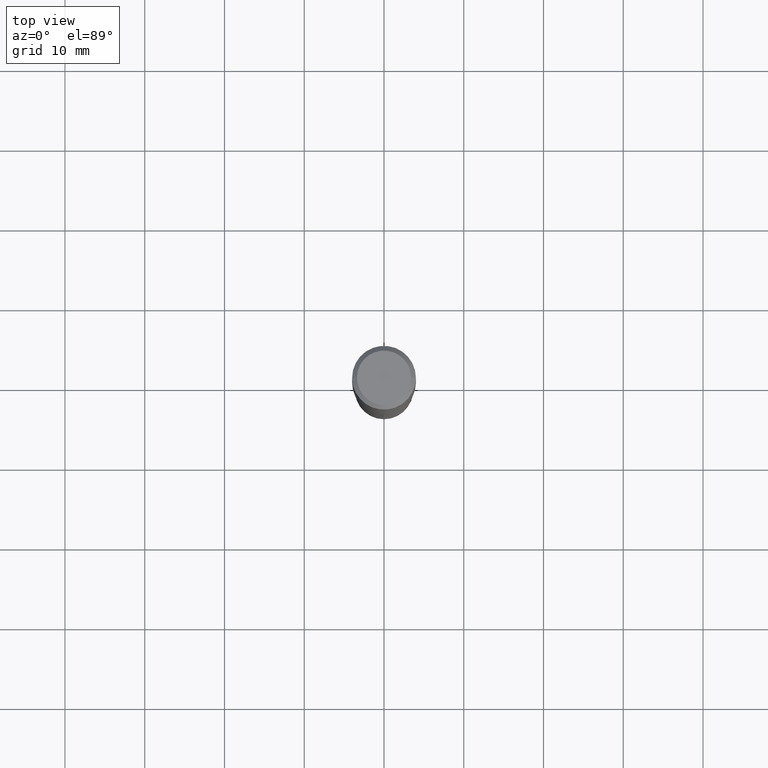
[diagram: clean part render]
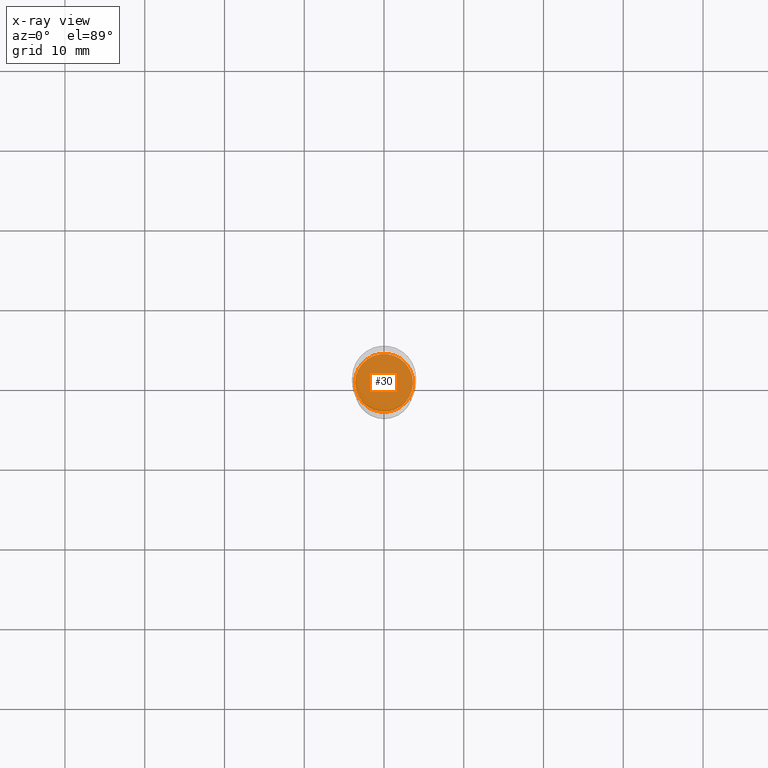
[diagram: x-ray — body ghosted, one internal face saturated and labeled with its STEP entity id]
A machine part, top view, then the same camera in x-ray: the body is ghosted and one INTERNAL B-rep face — a face not visible from any outside direction — is saturated and labeled: STEP entity #30.
In plain terms, the highlighted planar face has unit normal (-0, 0, 1).
Its self-contained STEP definition (entity closure, byte-faithful):
#10 = VERTEX_POINT ( 'NONE', #129 ) ;
#12 = DIRECTION ( 'NONE',  ( -2.445468806185136597E-29, 3.491481338843145583E-15, 1.000000000000000000 ) ) ;
#22 = CARTESIAN_POINT ( 'NONE',  ( 3.659399521575439863E-29, -5.224652675444884140E-15, -1.496400000000000396 ) ) ;
#30 = ADVANCED_FACE ( 'NONE', ( #305 ), #270, .F. ) ;
#37 = VERTEX_POINT ( 'NONE', #378 ) ;
#61 = EDGE_CURVE ( 'NONE', #10, #37, #257, .T. ) ;
#81 = DIRECTION ( 'NONE',  ( -2.438088387897960049E-29, 3.491481338843145188E-15, 1.000000000000000000 ) ) ;
#129 = CARTESIAN_POINT ( 'NONE',  ( -0.1431999999999999940, -4.204506250662309516E-15, -1.496400000000000396 ) ) ;
#157 = DIRECTION ( 'NONE',  ( 1.000000000000000000, -6.982962677686268288E-15, 0.000000000000000000 ) ) ;
#182 = EDGE_LOOP ( 'NONE', ( #426, #490 ) ) ;
#230 = AXIS2_PLACEMENT_3D ( 'NONE', #418, #81, #235 ) ;
#235 = DIRECTION ( 'NONE',  ( 1.000000000000000000, -6.982962677686265922E-15, 4.876176775795935793E-29 ) ) ;
#253 = CIRCLE ( 'NONE', #266, 0.1431999999999999940 ) ;
#257 = CIRCLE ( 'NONE', #441, 0.1431999999999999940 ) ;
#259 = DIRECTION ( 'NONE',  ( 1.000000000000000000, -6.982962677686268288E-15, 0.000000000000000000 ) ) ;
#266 = AXIS2_PLACEMENT_3D ( 'NONE', #22, #442, #259 ) ;
#270 = PLANE ( 'NONE',  #230 ) ;
#305 = FACE_OUTER_BOUND ( 'NONE', #182, .T. ) ;
#352 = CARTESIAN_POINT ( 'NONE',  ( 3.659399521575439863E-29, -5.224652675444884140E-15, -1.496400000000000396 ) ) ;
#378 = CARTESIAN_POINT ( 'NONE',  ( 0.1431999999999999940, -6.224612930889557672E-15, -1.496400000000000396 ) ) ;
#418 = CARTESIAN_POINT ( 'NONE',  ( 1.665969782887356156E-29, -8.079357520220864542E-15, -1.496400000000000396 ) ) ;
#426 = ORIENTED_EDGE ( 'NONE', *, *, #468, .F. ) ;
#441 = AXIS2_PLACEMENT_3D ( 'NONE', #352, #12, #157 ) ;
#442 = DIRECTION ( 'NONE',  ( -2.445468806185136597E-29, 3.491481338843145583E-15, 1.000000000000000000 ) ) ;
#468 = EDGE_CURVE ( 'NONE', #37, #10, #253, .T. ) ;
#490 = ORIENTED_EDGE ( 'NONE', *, *, #61, .F. ) ;